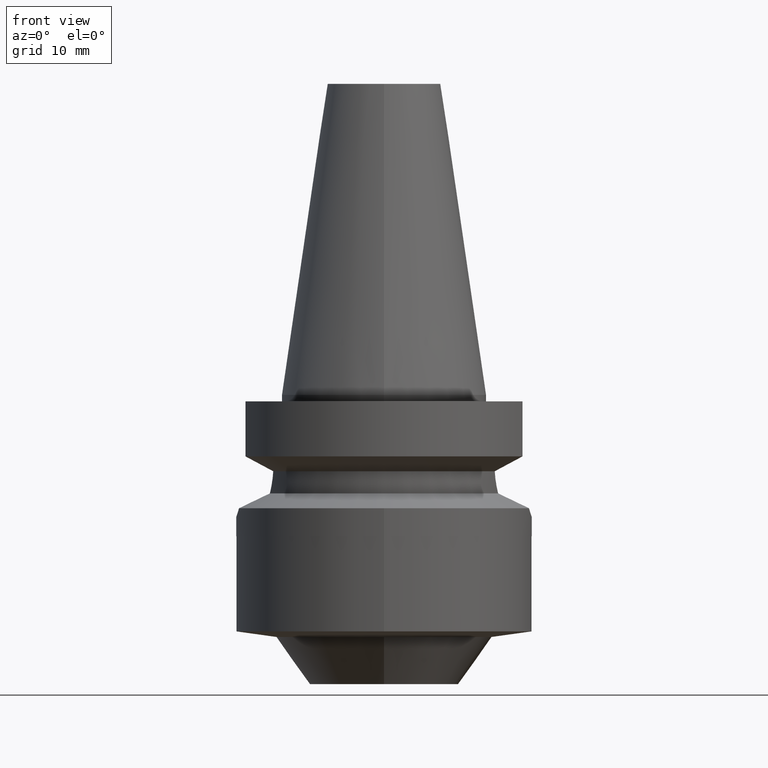
[diagram: clean part render]
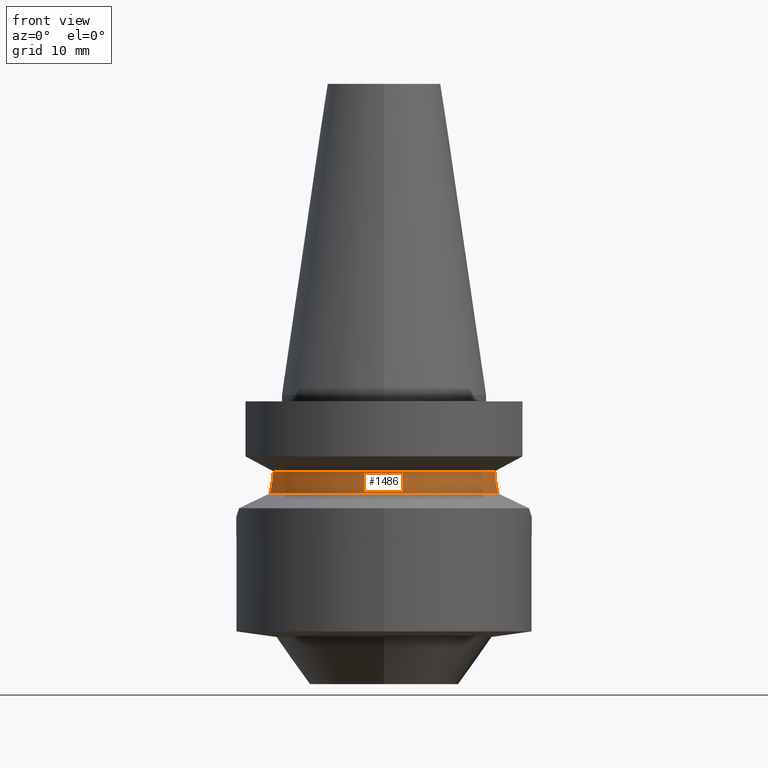
[diagram: same view with one face highlighted and labeled with its STEP entity id]
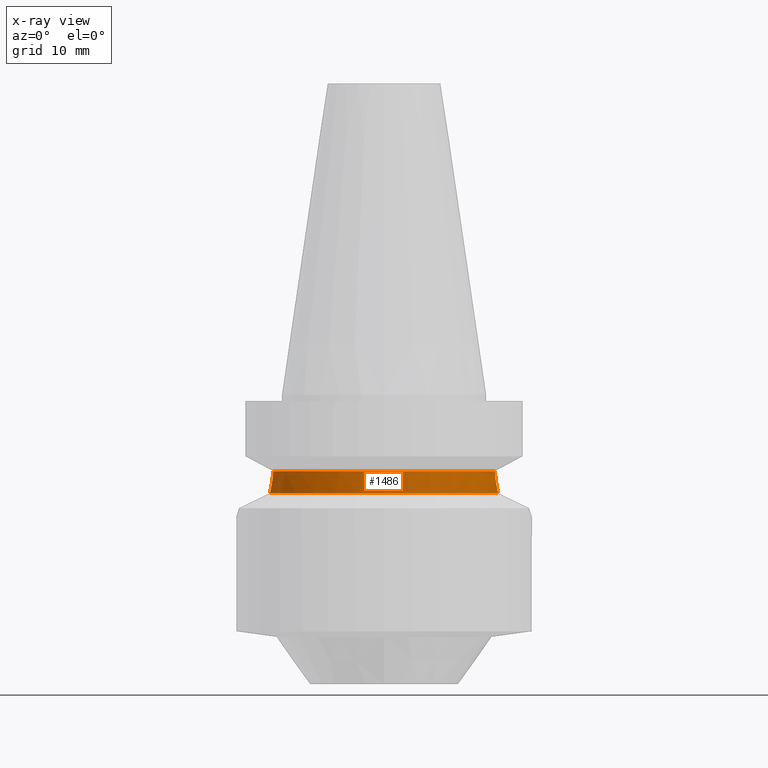
[diagram: x-ray of the same camera — body ghosted, the highlighted face saturated]
A machine part, front view. The second image highlights one B-rep face of the part: STEP entity #1486.
The next image is the same camera in x-ray: the body ghosted, the highlighted face saturated — about 0% of this face is hidden behind the body in this view.
In plain terms, the highlighted cylindrical surface (partial cylindrical patch) has radius 19 mm, axis along (0, 0, -1).
Its self-contained STEP definition (entity closure, byte-faithful):
#243=CARTESIAN_POINT('',(0.E0,1.093341284897E-14,-1.187660944647E1));
#244=DIRECTION('',(0.E0,0.E0,-1.E0));
#245=DIRECTION('',(9.071218755694E-1,-4.208680349747E-1,0.E0));
#246=AXIS2_PLACEMENT_3D('',#243,#244,#245);
#251=CARTESIAN_POINT('',(0.E0,1.093341284897E-14,-1.187660944647E1));
#252=DIRECTION('',(0.E0,0.E0,-1.E0));
#253=DIRECTION('',(0.E0,-1.E0,0.E0));
#254=AXIS2_PLACEMENT_3D('',#251,#252,#253);
#259=CARTESIAN_POINT('',(-1.723531622874E1,-7.996491146970E0,
-1.187660607764E1));
#436=CARTESIAN_POINT('',(-1.775736593456E1,-6.758398853744E0,
-1.532339055353E1));
#441=CARTESIAN_POINT('',(0.E0,1.022848384030E-14,-1.532339055353E1));
#442=DIRECTION('',(0.E0,0.E0,1.E0));
#443=DIRECTION('',(-9.345982070819E-1,-3.557052028286E-1,0.E0));
#444=AXIS2_PLACEMENT_3D('',#441,#442,#443);
#449=CARTESIAN_POINT('',(0.E0,1.022848384030E-14,-1.532339055353E1));
#450=DIRECTION('',(0.E0,0.E0,1.E0));
#451=DIRECTION('',(0.E0,-1.E0,0.E0));
#452=AXIS2_PLACEMENT_3D('',#449,#450,#451);
#457=CARTESIAN_POINT('',(1.775736593456E1,-6.758398853744E0,-1.532339055353E1));
#484=CARTESIAN_POINT('',(-1.775736593456E1,-6.758398853744E0,
-1.532339055353E1));
#485=CARTESIAN_POINT('',(-1.766900291694E1,-6.990568406464E0,
-1.496460840961E1));
#486=CARTESIAN_POINT('',(-1.750799178896E1,-7.386969126590E0,
-1.422867820441E1));
#487=CARTESIAN_POINT('',(-1.732654360571E1,-7.799355478525E0,
-1.306354745996E1));
#488=CARTESIAN_POINT('',(-1.725677127681E1,-7.950247807426E0,
-1.227568317995E1));
#489=CARTESIAN_POINT('',(-1.723531622874E1,-7.996491146970E0,
-1.187660607764E1));
#494=CARTESIAN_POINT('',(1.723531135316E1,-7.996501749113E0,-1.187660739352E1));
#495=CARTESIAN_POINT('',(1.725678232498E1,-7.950224088161E0,-1.227597896311E1));
#496=CARTESIAN_POINT('',(1.732662308204E1,-7.799182282711E0,-1.306421904259E1));
#497=CARTESIAN_POINT('',(1.750810985682E1,-7.386689473309E0,-1.422927357653E1));
#498=CARTESIAN_POINT('',(1.766906066291E1,-6.990416681702E0,-1.496484287677E1));
#499=CARTESIAN_POINT('',(1.775736593456E1,-6.758398853744E0,-1.532339055353E1));
#1080=VERTEX_POINT('',#457);
#1081=VERTEX_POINT('',#494);
#1094=VERTEX_POINT('',#436);
#1095=CARTESIAN_POINT('',(0.E0,-1.9E1,-1.532339055353E1));
#1096=VERTEX_POINT('',#1095);
#1111=VERTEX_POINT('',#259);
#1112=CARTESIAN_POINT('',(0.E0,-1.9E1,-1.187660944647E1));
#1113=VERTEX_POINT('',#1112);
#1472=CARTESIAN_POINT('',(0.E0,1.874566855455E-14,5.307E1));
#1473=DIRECTION('',(0.E0,0.E0,-1.E0));
#1474=DIRECTION('',(0.E0,-1.E0,0.E0));
#1475=AXIS2_PLACEMENT_3D('',#1472,#1473,#1474);
#1476=CYLINDRICAL_SURFACE('',#1475,1.9E1);
#1477=ORIENTED_EDGE('',*,*,#1448,.T.);
#1478=ORIENTED_EDGE('',*,*,#1308,.F.);
#1479=ORIENTED_EDGE('',*,*,#1306,.F.);
#1481=ORIENTED_EDGE('',*,*,#1480,.T.);
#1482=ORIENTED_EDGE('',*,*,#1461,.F.);
#1483=ORIENTED_EDGE('',*,*,#1459,.F.);
#1484=EDGE_LOOP('',(#1477,#1478,#1479,#1481,#1482,#1483));
#1485=FACE_OUTER_BOUND('',#1484,.F.);
#247=CIRCLE('',#246,1.9E1);
#255=CIRCLE('',#254,1.9E1);
#445=CIRCLE('',#444,1.9E1);
#453=CIRCLE('',#452,1.9E1);
#490=B_SPLINE_CURVE_WITH_KNOTS('',3,(#484,#485,#486,#487,#488,#489),
.UNSPECIFIED.,.F.,.F.,(4,1,1,4),(0.E0,3.333333333333E-1,6.666666666667E-1,1.E0),
.UNSPECIFIED.);
#500=B_SPLINE_CURVE_WITH_KNOTS('',3,(#494,#495,#496,#497,#498,#499),
.UNSPECIFIED.,.F.,.F.,(4,1,1,4),(0.E0,3.333333333333E-1,6.666666666667E-1,1.E0),
.UNSPECIFIED.);
#1306=EDGE_CURVE('',#1081,#1113,#247,.T.);
#1308=EDGE_CURVE('',#1113,#1111,#255,.T.);
#1448=EDGE_CURVE('',#1094,#1111,#490,.T.);
#1459=EDGE_CURVE('',#1094,#1096,#445,.T.);
#1461=EDGE_CURVE('',#1096,#1080,#453,.T.);
#1480=EDGE_CURVE('',#1081,#1080,#500,.T.);
#1486=ADVANCED_FACE('',(#1485),#1476,.T.);